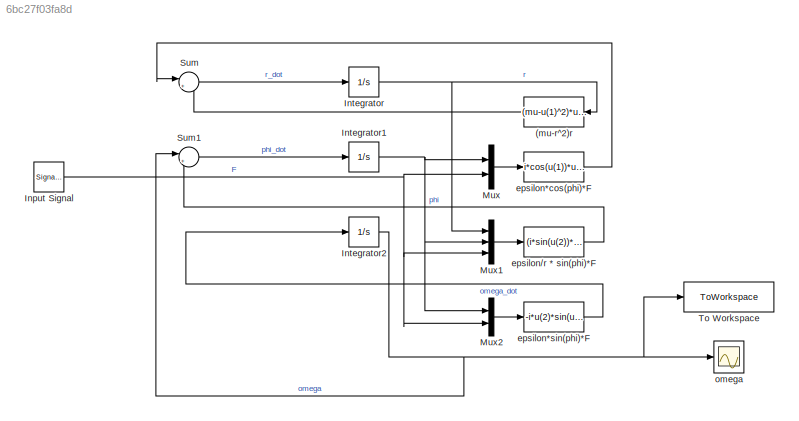
MODEL slx_6bc27f03fa8d
KIND model
CONFIG AbsTol = auto
CONFIG EnableMultiTasking = off
CONFIG FixedStep = auto
CONFIG MaxStep = auto
CONFIG MinStep = auto
CONFIG RelTol = 1e-3
CONFIG SampleTimeConstraint = Unconstrained
CONFIG Solver = VariableStepAuto
CONFIG SolverName = VariableStepAuto
CONFIG StartTime = 0.0
CONFIG StopTime = 3000
BLOCK [Fcn] (mu-r^2)r
  Expr = (mu-u(1)^2)*u(1)
BLOCK [SignalGenerator] Input Signal
  Frequency = 30
  Ports = [0, 1]
  Units = rad/sec
BLOCK [Integrator] Integrator
  InitialCondition = 1
  Ports = [1, 1]
BLOCK [Integrator] Integrator1
  Ports = [1, 1]
BLOCK [Integrator] Integrator2
  InitialCondition = 40
  Ports = [1, 1]
BLOCK [Mux] Mux
  DisplayOption = bar
  Inputs = 2
  Ports = [2, 1]
BLOCK [Mux] Mux1
  DisplayOption = bar
  Inputs = 3
  Ports = [3, 1]
BLOCK [Mux] Mux2
  DisplayOption = bar
  Inputs = 2
  Ports = [2, 1]
BLOCK [Sum] Sum
  IconShape = round
  InputSameDT = off
  Inputs = |++
  OutDataTypeStr = Inherit: Inherit via internal rule
  Ports = [2, 1]
  SaturateOnIntegerOverflow = off
BLOCK [Sum] Sum1
  IconShape = round
  InputSameDT = off
  Inputs = |+-
  OutDataTypeStr = Inherit: Inherit via internal rule
  Ports = [2, 1]
  SaturateOnIntegerOverflow = off
BLOCK [ToWorkspace] To Workspace
  FixptAsFi = on
  MaxDataPoints = inf
  Ports = [1]
  SampleTime = -1
  SaveFormat = Timeseries
  VariableName = omega
BLOCK [Fcn] epsilon*cos(phi)*F
  Expr = i*cos(u(1))*u(2)
BLOCK [Fcn] epsilon*sin(phi)*F
  Expr = -i*u(2)*sin(u(1))
BLOCK [Fcn] epsilon//r * sin(phi)*F
  Expr = (i*sin(u(2))*u(3))/u(1)
BLOCK [Scope] omega 
  Floating = off
  NumInputPorts = 1
  Ports = [1]
  ScopeSpecificationString = Simulink.scopes.TimeScopeBlockCfg('CurrentConfiguration', extmgr.ConfigurationSet(extmgr.Configuration('Core','General UI',true),extmgr.Configuration('Core','Source UI',true),extmgr.Configuration('Sources','WiredSimulink',true),extmgr.Configuration('Visuals','Time Domain',true,'SerializedDisplays',{struct('MinYLimReal','28.00102','MaxYLimReal','41.37443','YLabelReal','','MinYLimMag','28.00102','Ma...<+1358ch>
LINE (mu-r^2)r:1 -> Sum:2
NET Input Signal:1 -> Mux1:3, Mux2:2, Mux:2
NET Integrator1:1 -> Mux1:2, Mux2:1, Mux:1
NET Integrator2:1 -> Sum1:1, To Workspace:1, omega :1
NET Integrator:1 -> (mu-r^2)r:1, Mux1:1
LINE Mux1:1 -> epsilon//r * sin(phi)*F:1
LINE Mux2:1 -> epsilon*sin(phi)*F:1
LINE Mux:1 -> epsilon*cos(phi)*F:1
LINE Sum1:1 -> Integrator1:1
LINE Sum:1 -> Integrator:1
LINE epsilon*cos(phi)*F:1 -> Sum:1
LINE epsilon*sin(phi)*F:1 -> Integrator2:1
LINE epsilon//r * sin(phi)*F:1 -> Sum1:2
note: NET lines group one-source signal fan-out (src -> all destinations, sorted); 1:1 wires keep LINE
